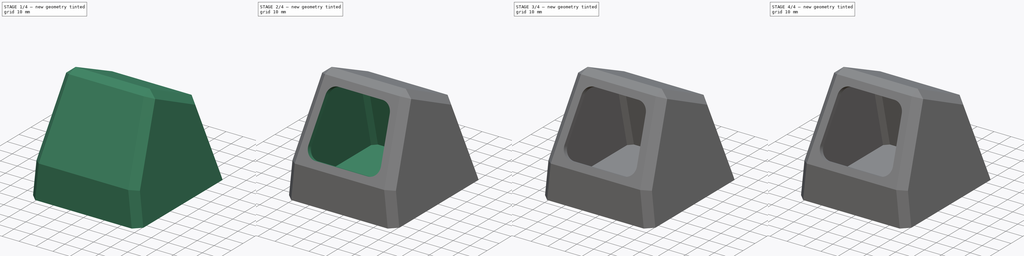
[diagram: build sequence overview — one tinted view per stage of 4, left to right]
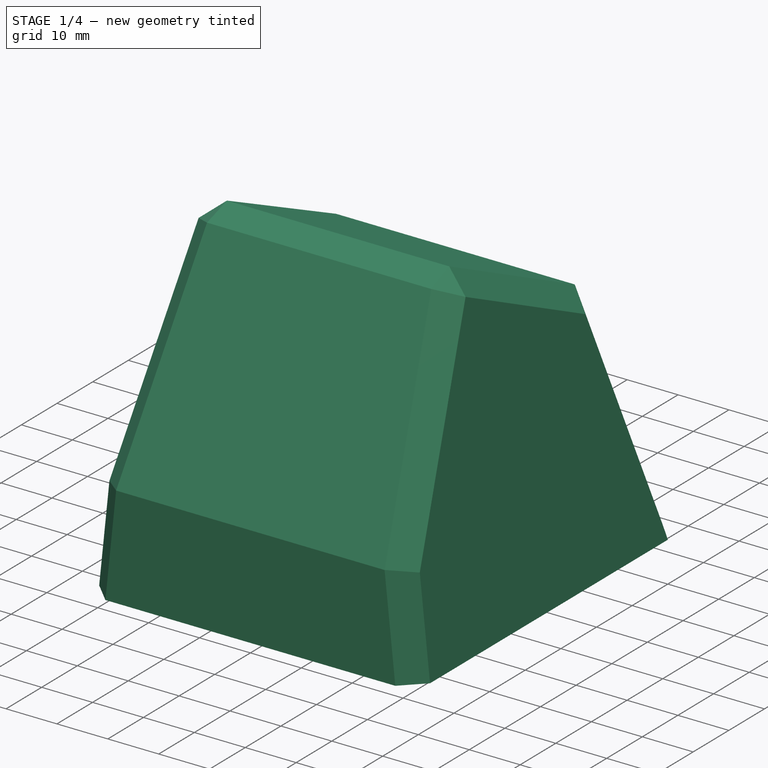
[diagram: stage 1 of 4 — iso view after this stage's code; geometry added in this stage tinted green]
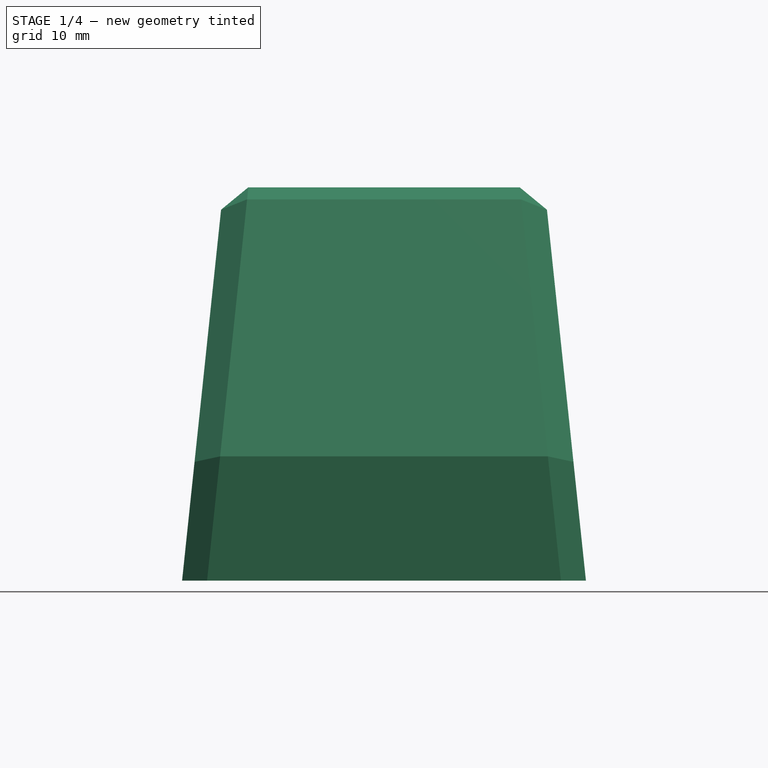
[diagram: stage 1 of 4 — front view after this stage's code; geometry added in this stage tinted green]
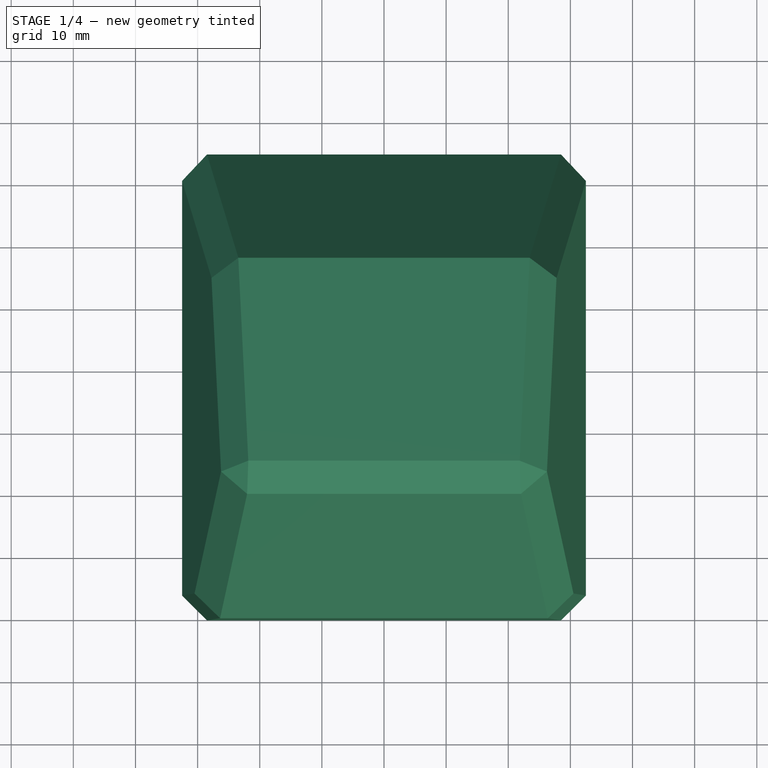
[diagram: stage 1 of 4 — top view after this stage's code; geometry added in this stage tinted green]
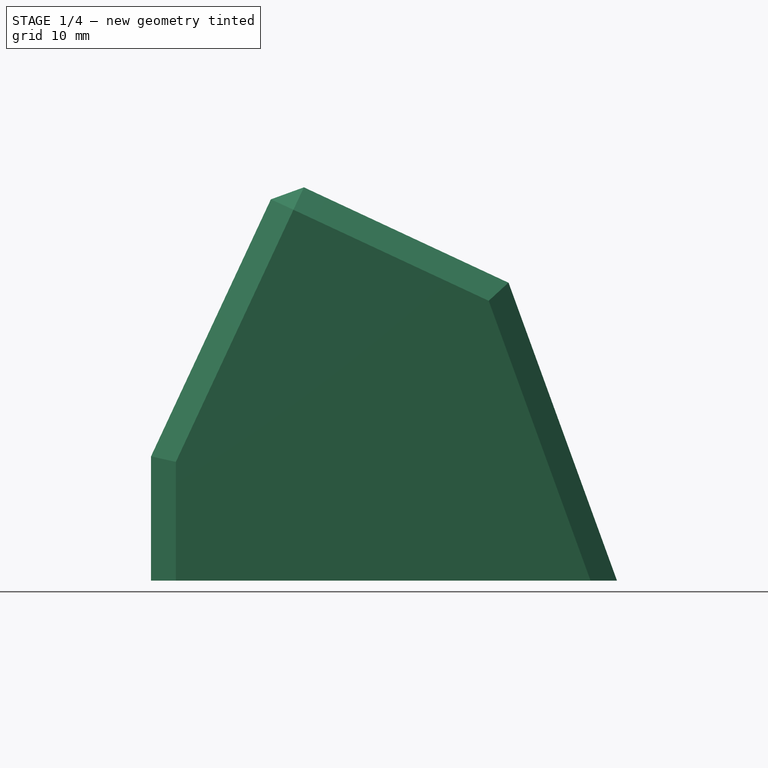
[diagram: stage 1 of 4 — right view after this stage's code; geometry added in this stage tinted green]
FCSTD DOCUMENT  (FreeCAD 0.20R28730 (Git))
Label: Tip Cleaner
License: All rights reserved
LicenseURL: http://en.wikipedia.org/wiki/All_rights_reserved
objects: Sketcher::SketchObject×8, PartDesign::Pocket×5, PartDesign::Body×3, PartDesign::Pad×2, PartDesign::FeatureBase×2, PartDesign::Draft×1, PartDesign::Chamfer×1, PartDesign::Thickness×1, PartDesign::Plane×1, PartDesign::Hole×1, PartDesign::CoordinateSystem×1
note: 37 computed .brp shape members not serialized (recipe doc carries the construction recipe); baked Part::Feature solids carry a one-line shape summary decoded from their .brp

FEATURE [Sketcher::SketchObject] Sketch
  FullyConstrained = true
  MapMode = 5
  Placement = pos=(0,0,0) rot=(0.57735,0.57735,0.57735;2.0944rad)
  Support = -> [YZ_Plane]
  sketch-geometry (5):
    g0: LineSegment StartX=0 StartY=0 StartZ=0 EndX=0 EndY=20 EndZ=0
    g1: LineSegment StartX=0 StartY=20 StartZ=0 EndX=20.9838 EndY=65 EndZ=0
    g2: LineSegment StartX=20.9838 StartY=65 StartZ=0 EndX=57.5476 EndY=47.95 EndZ=0
    g3: LineSegment StartX=57.5476 StartY=47.95 StartZ=0 EndX=75 EndY=0 EndZ=0
    g4: LineSegment StartX=75 StartY=0 StartZ=0 EndX=0 EndY=0 EndZ=0
  constraints (14):
    c: Coincident(g-1,g0)
    c: PointOnObject(g0,g-2)
    c: Coincident(g0,g1)
    c: Coincident(g1,g2)
    c: Coincident(g2,g3)
    c: PointOnObject(g3,g-1)
    c: Coincident(g3,g4)
    c: Coincident(g4,g0)
    c: DistanceY(g0,g0) = 20
    c: DistanceY(g0,g1) = 65
    c: DistanceX(g4,g4) = 75
    c: Perpendicular(g1,g2)
    c: Angle(g-1,g1) = 1.13446
    c: Angle(g3,g4) = 1.22173
FEATURE [PartDesign::Pad] Pad
  Direction = (1,-2e-16,3e-16)
  Length = 65
  Length2 = 10
  Midplane = true
  Placement = pos=(0,0,0) rot=(0.57735,0.57735,0.57735;2.0944rad)
  Profile = -> Sketch
  ReferenceAxis = -> Sketch [N_Axis]
  Refine = true
  Type = 0
FEATURE [PartDesign::Draft] Draft
  Angle = 6
  Base = -> Pad [Face7,Face6]
  BaseFeature = -> Pad
  NeutralPlane = -> Pad [Face5]
  Placement = pos=(0,0,0) rot=(0.57735,0.57735,0.57735;2.0944rad)
  Refine = true
  Reversed = true
  SupportTransform = false
FEATURE [PartDesign::Chamfer] Chamfer
  Angle = 45
  Base = -> Draft [Edge3,Edge6,Edge9,Edge12,Edge4,Edge7,Edge10,Edge13,Edge5]
  BaseFeature = -> Draft
  ChamferType = 0
  FlipDirection = false
  Placement = pos=(0,0,0) rot=(0.57735,0.57735,0.57735;2.0944rad)
  Refine = true
  Size = 4
  Size2 = 1
  SupportTransform = false
  UseAllEdges = false
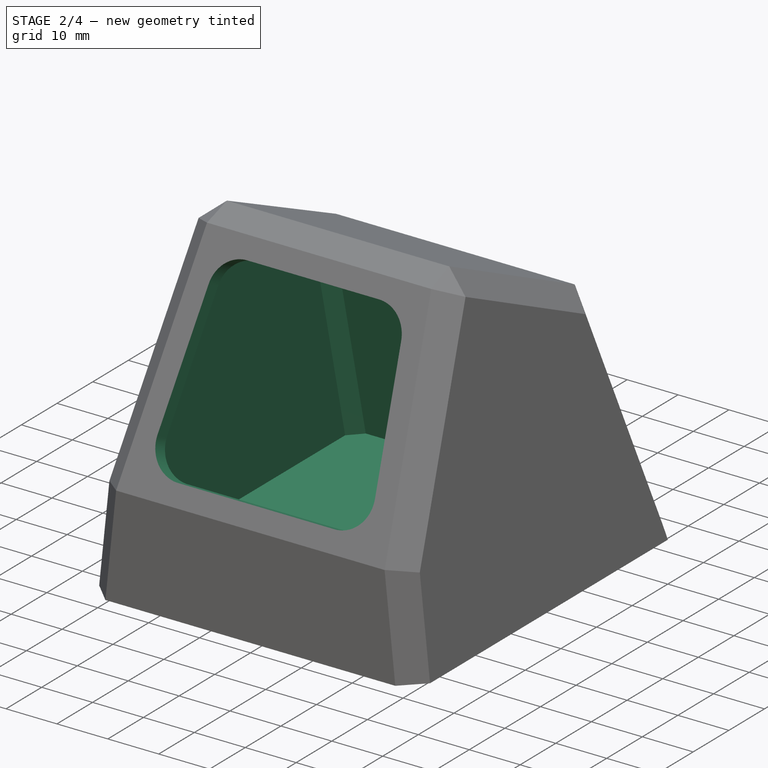
[diagram: stage 2 of 4 — iso view after this stage's code; geometry added in this stage tinted green]
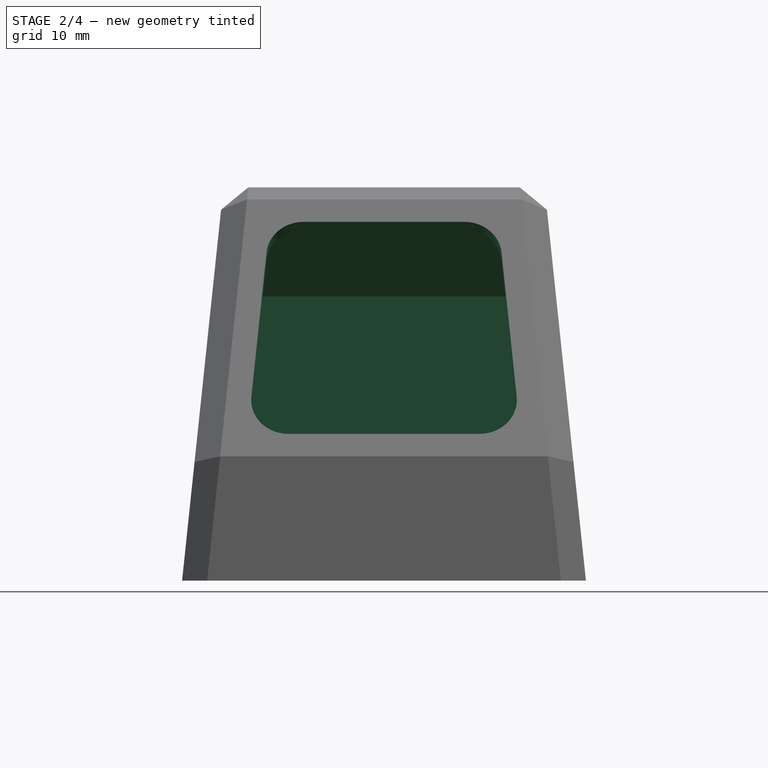
[diagram: stage 2 of 4 — front view after this stage's code; geometry added in this stage tinted green]
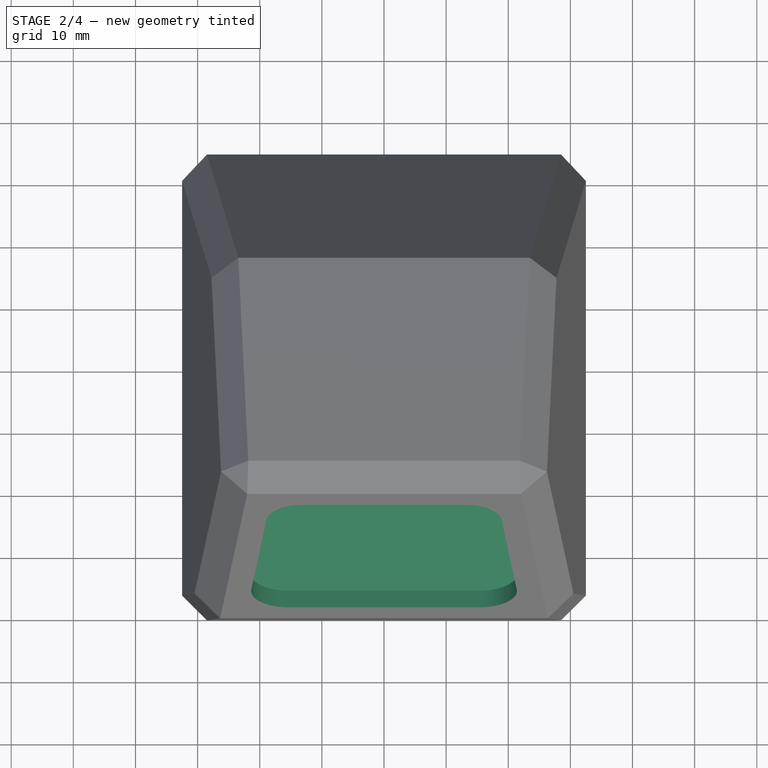
[diagram: stage 2 of 4 — top view after this stage's code; geometry added in this stage tinted green]
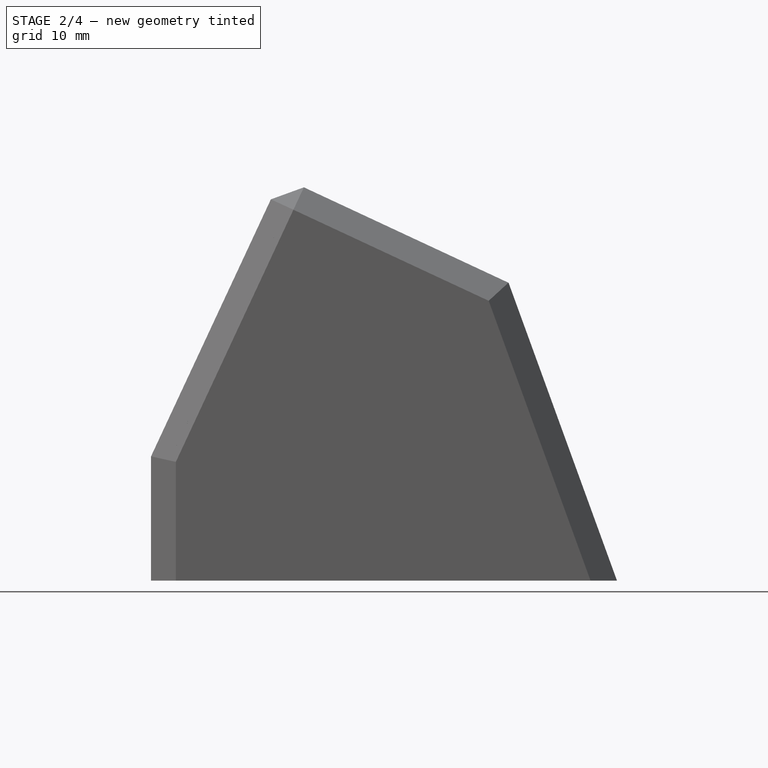
[diagram: stage 2 of 4 — right view after this stage's code; geometry added in this stage tinted green]
FEATURE [PartDesign::Thickness] Thickness
  Base = -> Chamfer [Face2]
  BaseFeature = -> Chamfer
  Intersection = true
  Join = 0
  Mode = 0
  Refine = true
  Reversed = true
  SupportTransform = false
  Value = 3
FEATURE [PartDesign::Plane] DatumPlane
  Length = 82.8318
  MapMode = 5
  Placement = pos=(-4.4e-15,-7.66044,3.57212) rot=(1,0,0;1.13446rad)
  ResizeMode = 0
  Support = -> [Thickness]
  Width = 140.129
FEATURE [Sketcher::SketchObject] Sketch001
  ExternalGeometry = -> [Thickness]
  FullyConstrained = true
  MapMode = 5
  Placement = pos=(-4.4e-15,-7.66044,3.57212) rot=(1,0,0;1.13446rad)
  Support = -> [DatumPlane]
  sketch-geometry (13):
    g0: ArcOfCircle CenterX=-12.9384 CenterY=53.7782 CenterZ=0 NormalX=0 NormalY=0 NormalZ=1 AngleXU=0 Radius=6 StartAngle=1.5708 EndAngle=3.04662
    g1: LineSegment StartX=-12.9384 StartY=59.7782 StartZ=0 EndX=12.9384 EndY=59.7782 EndZ=0
    g2: ArcOfCircle CenterX=12.9384 CenterY=53.7782 CenterZ=0 NormalX=0 NormalY=0 NormalZ=1 AngleXU=0 Radius=6 StartAngle=0.0949702 EndAngle=1.5708
    g3: LineSegment StartX=18.9114 StartY=54.3471 StartZ=0 EndX=21.3541 EndY=28.7044 EndZ=0
    g4: ArcOfCircle CenterX=15.3811 CenterY=28.1354 CenterZ=0 NormalX=0 NormalY=0 NormalZ=1 AngleXU=0 Radius=6 StartAngle=4.71239 EndAngle=6.37816
    g5: LineSegment StartX=15.3811 StartY=22.1354 StartZ=0 EndX=-15.3811 EndY=22.1354 EndZ=0
    g6: ArcOfCircle CenterX=-15.3811 CenterY=28.1354 CenterZ=0 NormalX=0 NormalY=0 NormalZ=1 AngleXU=0 Radius=6 StartAngle=3.04662 EndAngle=4.71239
    g7: LineSegment StartX=-21.3541 StartY=28.7044 StartZ=0 EndX=-18.9114 EndY=54.3471 EndZ=0
    g8: GeomPoint X=-18.3941 Y=59.7782 Z=0
    g9: GeomPoint X=21.9798 Y=22.1354 Z=0
    g10: LineSegment StartX=21.3541 StartY=28.7044 StartZ=0 EndX=25.336 EndY=29.0837 EndZ=0
    g11: LineSegment StartX=12.9384 StartY=59.7782 StartZ=0 EndX=12.9384 EndY=63.7782 EndZ=0
    g12: LineSegment StartX=15.3811 StartY=22.1354 StartZ=0 EndX=15.3811 EndY=18.1354 EndZ=0
  constraints (31):
    c: Tangent(g0,g1) = 1.5708
    c: Tangent(g1,g2) = 1.5708
    c: Tangent(g2,g3) = 1.5708
    c: Tangent(g3,g4) = 1.5708
    c: Tangent(g4,g5) = 1.5708
    c: Tangent(g5,g6) = 1.5708
    c: Tangent(g6,g7) = 1.5708
    c: Tangent(g7,g0) = 1.5708
    c: Equal(g0,g2)
    c: Equal(g2,g4)
    c: Equal(g4,g6)
    c: PointOnObject(g8,g1)
    c: PointOnObject(g8,g7)
    c: PointOnObject(g9,g3)
    c: PointOnObject(g9,g5)
    c: Symmetric(g0,g2,g-2)
    c: Symmetric(g6,g4,g-2)
    c: Coincident(g10,g3)
    c: PointOnObject(g10,g-3)
    c: Coincident(g11,g1)
    c: Vertical(g11)
    c: Horizontal(g11,g-3)
    c: Perpendicular(g-3,g10)
    c: Equal(g10,g11)
    c: DistanceY(g11,g11) = 4
    c: Radius(g2) = 6
    c: Parallel(g3,g-3)
    c: Coincident(g12,g4)
    c: Vertical(g12)
    c: Horizontal(g12,g-3)
    c: Equal(g12,g11)
FEATURE [PartDesign::Pocket] Pocket
  BaseFeature = -> Thickness
  Direction = (6e-16,0.906308,-0.422618)
  Length = 5
  Length2 = 5
  Profile = -> Sketch001
  ReferenceAxis = -> Sketch001 [N_Axis]
  Refine = true
  Type = 0
FEATURE [Sketcher::SketchObject] Sketch002
  ExternalGeometry = -> [Pocket]
  FullyConstrained = true
  MapMode = 5
  Support = -> [XY_Plane]
  sketch-geometry (8):
    g0: LineSegment StartX=-27.1555 StartY=71.8075 StartZ=0 EndX=-29.4835 EndY=69.3436 EndZ=0
    g1: LineSegment StartX=-29.4835 StartY=69.3436 StartZ=0 EndX=-29.4835 EndY=5.24264 EndZ=0
    g2: LineSegment StartX=-29.4835 StartY=5.24264 StartZ=0 EndX=-27.2285 EndY=3 EndZ=0
    g3: LineSegment StartX=27.1555 StartY=71.8075 StartZ=0 EndX=29.4835 EndY=69.3436 EndZ=0
    g4: LineSegment StartX=29.4835 StartY=69.3436 StartZ=0 EndX=29.4835 EndY=5.24264 EndZ=0
    g5: LineSegment StartX=29.4835 StartY=5.24264 StartZ=0 EndX=27.2285 EndY=3 EndZ=0
    g6: LineSegment StartX=-27.1555 StartY=71.8075 StartZ=0 EndX=27.1555 EndY=71.8075 EndZ=0
    g7: LineSegment StartX=-27.2285 StartY=3 StartZ=0 EndX=27.2285 EndY=3 EndZ=0
  constraints (16):
    c: Coincident(g-3,g0)
    c: Coincident(g0,g-3)
    c: Coincident(g0,g1)
    c: Coincident(g1,g-4)
    c: Coincident(g1,g2)
    c: Coincident(g2,g-4)
    c: Coincident(g3,g4)
    c: Coincident(g4,g5)
    c: Symmetric(g0,g3,g-2)
    c: Symmetric(g2,g5,g-2)
    c: Symmetric(g0,g3,g-2)
    c: Symmetric(g1,g4,g-2)
    c: Coincident(g6,g0)
    c: Coincident(g6,g3)
    c: Coincident(g7,g2)
    c: Coincident(g7,g5)
FEATURE [PartDesign::Pad] Pad001
  BaseFeature = -> Pocket
  Direction = (0,0,1)
  Length = 3
  Length2 = 10
  Profile = -> Sketch002
  ReferenceAxis = -> Sketch002 [N_Axis]
  Refine = true
  Type = 0
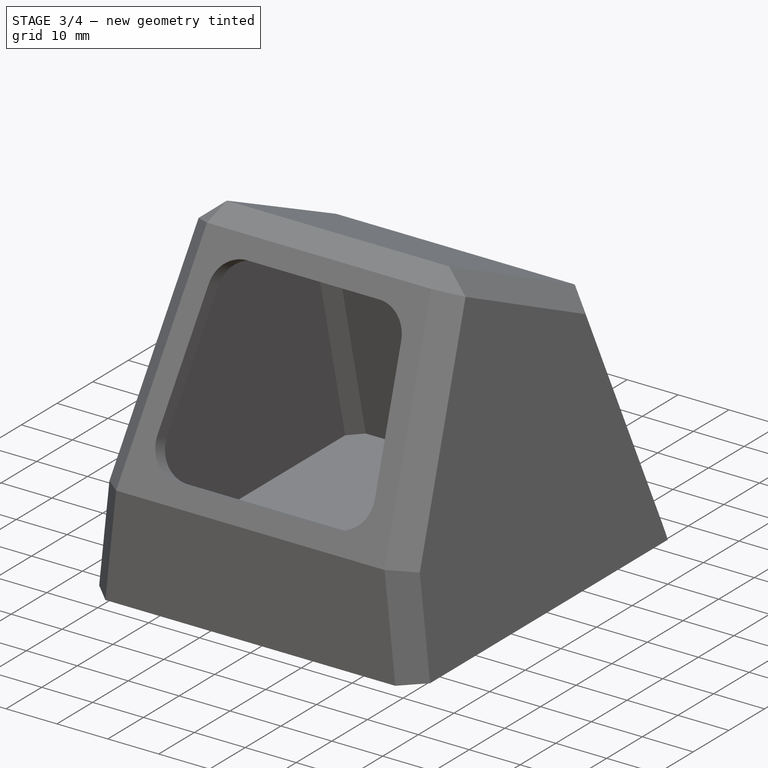
[diagram: stage 3 of 4 — iso view after this stage's code; geometry added in this stage tinted green]
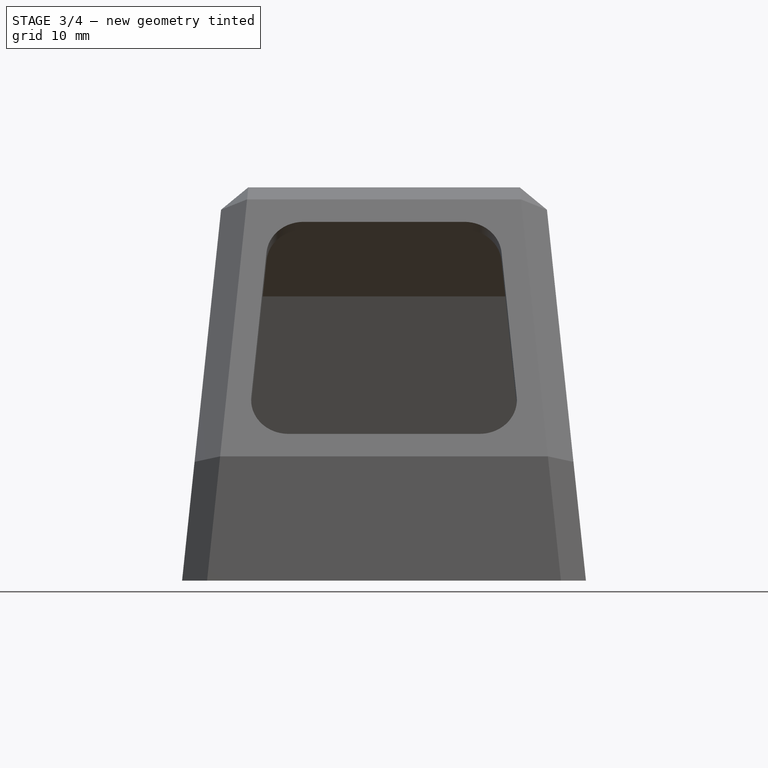
[diagram: stage 3 of 4 — front view after this stage's code; geometry added in this stage tinted green]
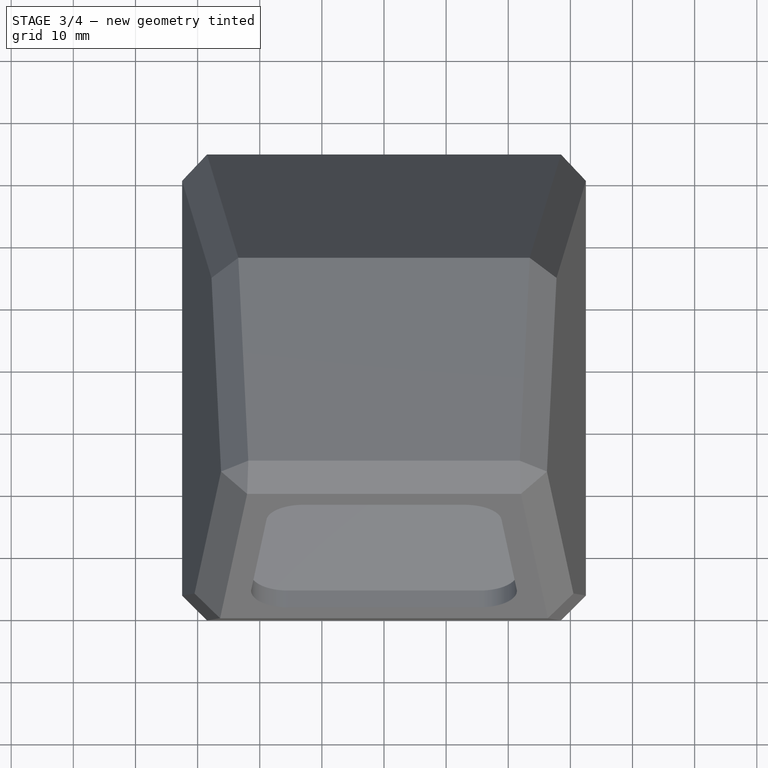
[diagram: stage 3 of 4 — top view after this stage's code; geometry added in this stage tinted green]
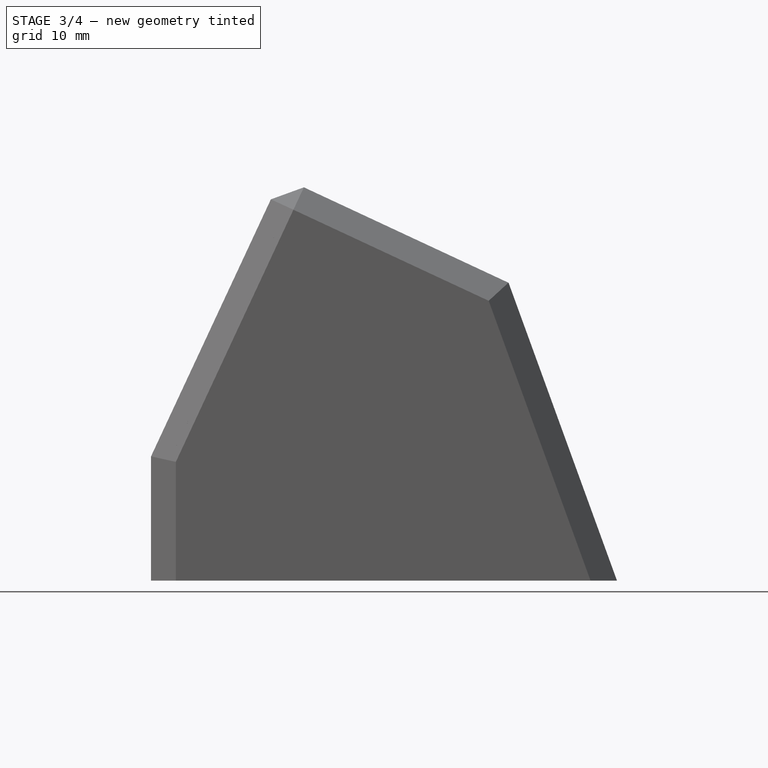
[diagram: stage 3 of 4 — right view after this stage's code; geometry added in this stage tinted green]
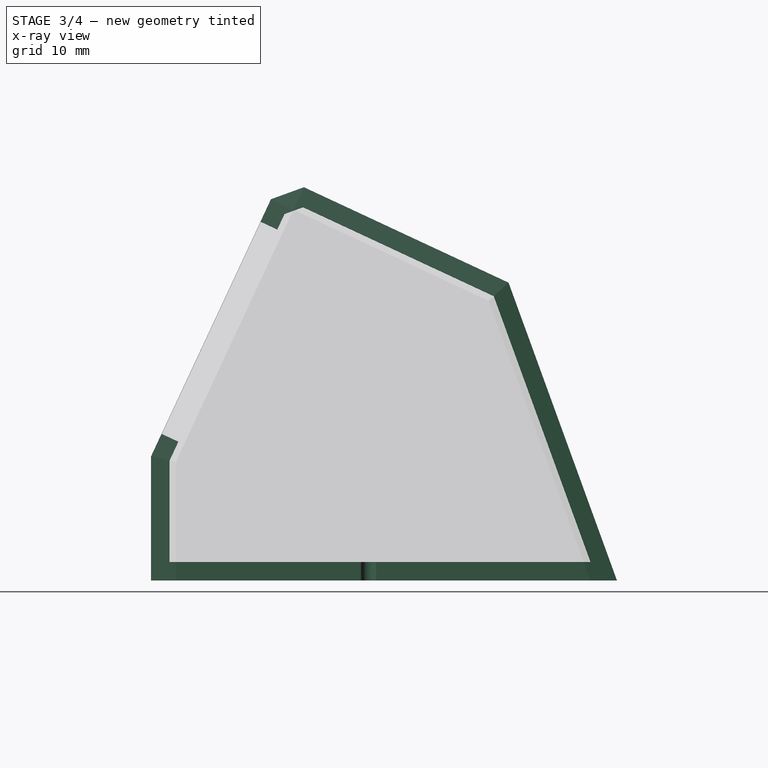
[diagram: stage 3 of 4 — x-ray composite at the right view; earlier geometry ghosted, this stage's added geometry solid]
FEATURE [Sketcher::SketchObject] Sketch003
  FullyConstrained = true
  MapMode = 5
  Support = -> [XY_Plane]
  sketch-geometry (2):
    g0: Circle CenterX=-15 CenterY=35 CenterZ=0 NormalX=0 NormalY=0 NormalZ=1 AngleXU=0 Radius=1.5
    g1: Circle CenterX=15 CenterY=35 CenterZ=0 NormalX=0 NormalY=0 NormalZ=1 AngleXU=0 Radius=1.5
  constraints (5):
    c: Symmetric(g0,g1,g-2)
    c: DistanceY(g-1,g0) = 35
    c: DistanceX(g0,g1) = 30
    c: Equal(g1,g0)
    c: Diameter(g1) = 3
FEATURE [PartDesign::Hole] Hole
  BaseFeature = -> Pad001
  CustomThreadClearance = 0
  Depth = 5
  DepthType = 0
  Diameter = 2.5
  DrillForDepth = false
  DrillPoint = 1
  DrillPointAngle = 118
  HoleCutCountersinkAngle = 90
  HoleCutCustomValues = false
  HoleCutDepth = 0
  HoleCutDiameter = 6.1
  HoleCutType = 0
  ModelThread = false
  Profile = -> Sketch003
  Refine = true
  Reversed = true
  Tapered = false
  TaperedAngle = 90
  ThreadClass = 0
  ThreadDepth = 5
  ThreadDepthType = 0
  ThreadDirection = 0
  ThreadFit = 0
  ThreadSize = 9
  ThreadType = 1
  Threaded = true
  UseCustomThreadClearance = false
FEATURE [Sketcher::SketchObject] Sketch004
  FullyConstrained = false
  MapMode = 5
  Placement = pos=(0,0,0) rot=(0.57735,0.57735,0.57735;2.0944rad)
  Support = -> [YZ_Plane001]
  sketch-geometry (4):
    g0: LineSegment StartX=0 StartY=0 StartZ=0 EndX=100.304 EndY=0 EndZ=0
    g1: LineSegment StartX=100.304 StartY=0 StartZ=0 EndX=100.304 EndY=74.0471 EndZ=0
    g2: LineSegment StartX=100.304 StartY=74.0471 StartZ=0 EndX=0 EndY=74.0471 EndZ=0
    g3: LineSegment StartX=0 StartY=74.0471 StartZ=0 EndX=0 EndY=0 EndZ=0
  constraints (9):
    c: Coincident(g0,g1)
    c: Coincident(g1,g2)
    c: Coincident(g2,g3)
    c: Coincident(g3,g0)
    c: Horizontal(g0)
    c: Horizontal(g2)
    c: Vertical(g1)
    c: Vertical(g3)
    c: Coincident(g0,g-1)
FEATURE [Sketcher::SketchObject] Sketch005
  AttachmentOffset = pos=(0,0,-3.9) rot=(0,0,1;0rad)
  FullyConstrained = true
  MapMode = 5
  Placement = pos=(-3.9,9e-16,-9e-16) rot=(0.57735,0.57735,0.57735;2.0944rad)
  Support = -> [YZ_Plane002]
  sketch-geometry (4):
    g0: LineSegment StartX=0 StartY=0 StartZ=0 EndX=100 EndY=0 EndZ=0
    g1: LineSegment StartX=100 StartY=0 StartZ=0 EndX=100 EndY=100 EndZ=0
    g2: LineSegment StartX=100 StartY=100 StartZ=0 EndX=0 EndY=100 EndZ=0
    g3: LineSegment StartX=0 StartY=100 StartZ=0 EndX=0 EndY=0 EndZ=0
  constraints (11):
    c: Coincident(g0,g1)
    c: Coincident(g1,g2)
    c: Coincident(g2,g3)
    c: Coincident(g3,g0)
    c: Horizontal(g0)
    c: Horizontal(g2)
    c: Vertical(g1)
    c: Vertical(g3)
    c: Coincident(g0,g-1)
    c: Equal(g1,g2)
    c: DistanceX(g2,g2) = 100
FEATURE [PartDesign::CoordinateSystem] LCS_Tip_Cleaner_Hole_1
  AttacherType = Attacher::AttachEngine3D
  MapMode = 11
  Placement = pos=(-15,35,0) rot=(0.707107,0.707107,0;3.14159rad)
  Support = -> [Hole]
FEATURE [PartDesign::Body] Body  label="Tip_Cleaner"
  Group = -> [Sketch,Pad,Draft,Chamfer,Thickness,DatumPlane,Sketch001,Pocket,Sketch002,Pad001,Sketch003,Hole,LCS_Tip_Cleaner_Hole_1]
  Origin = -> Origin
  Tip = -> Hole
FEATURE [PartDesign::FeatureBase] Clone
  BaseFeature = -> Body
FEATURE [PartDesign::Pocket] Pocket001
  BaseFeature = -> Clone
  Direction = (-1,2e-16,-3e-16)
  Length = 5
  Length2 = 5
  Profile = -> Sketch004
  ReferenceAxis = -> Sketch004 [N_Axis]
  Refine = true
  Reversed = true
  Type = 1
FEATURE [PartDesign::FeatureBase] Clone001
  BaseFeature = -> Body
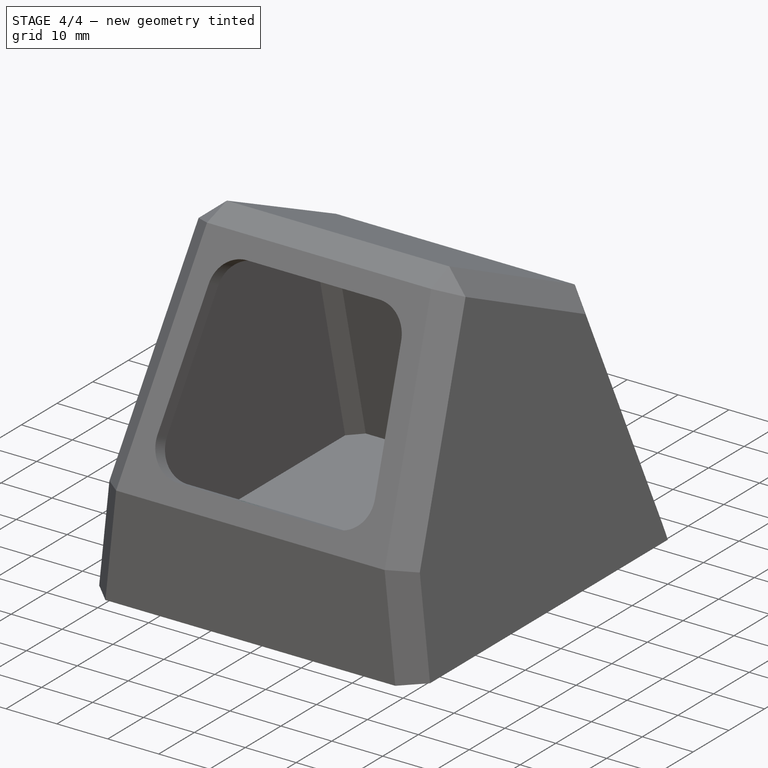
[diagram: stage 4 of 4 — iso view after this stage's code; geometry added in this stage tinted green]
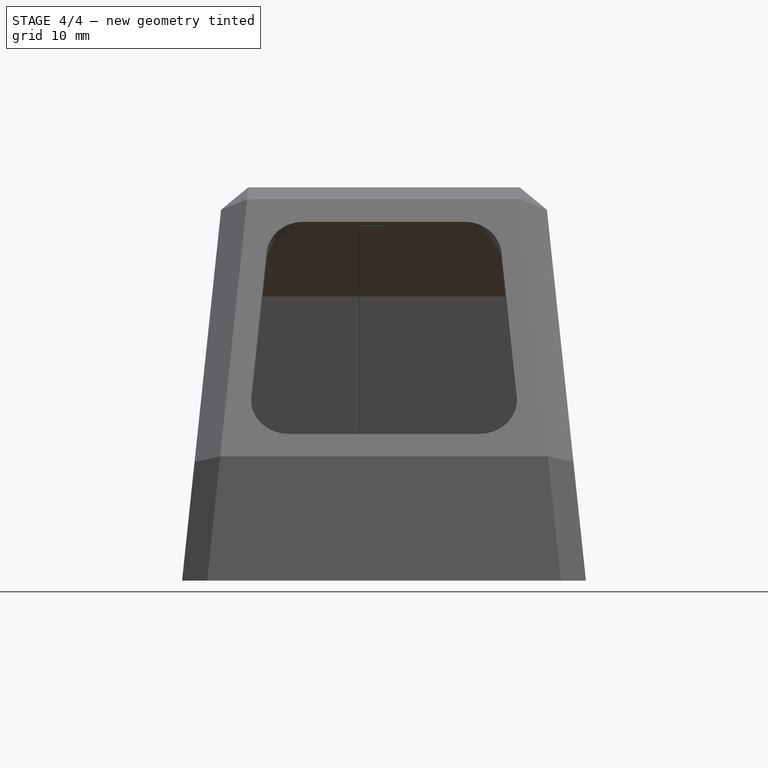
[diagram: stage 4 of 4 — front view after this stage's code; geometry added in this stage tinted green]
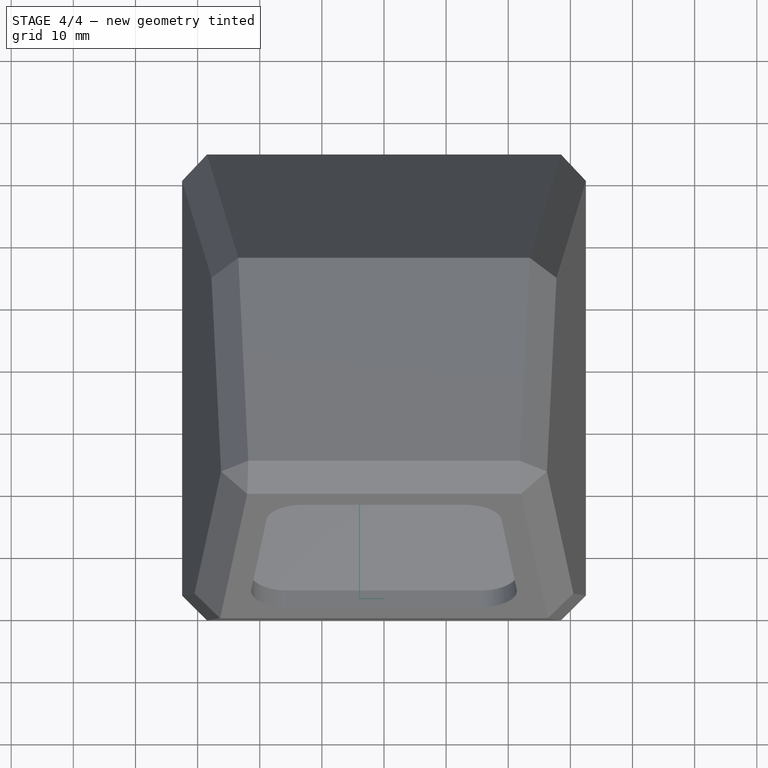
[diagram: stage 4 of 4 — top view after this stage's code; geometry added in this stage tinted green]
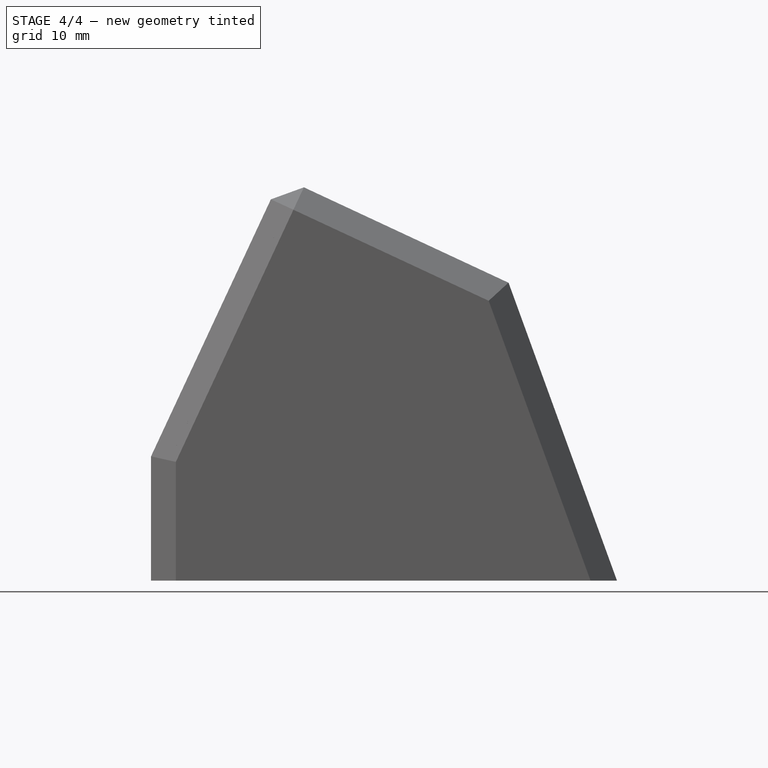
[diagram: stage 4 of 4 — right view after this stage's code; geometry added in this stage tinted green]
FEATURE [PartDesign::Pocket] Pocket002
  BaseFeature = -> Clone001
  Direction = (-1,2e-16,-3e-16)
  Length = 5
  Length2 = 5
  Profile = -> Sketch005
  ReferenceAxis = -> Sketch005 [N_Axis]
  Refine = true
  Type = 1
FEATURE [Sketcher::SketchObject] Sketch006
  ExternalGeometry = -> [Pocket001]
  FullyConstrained = true
  MapMode = 5
  Placement = pos=(0,0,0) rot=(0.57735,0.57735,0.57735;2.0944rad)
  Support = -> [YZ_Plane001]
  sketch-geometry (12):
    g0: LineSegment StartX=20.3903 StartY=60.1777 StartZ=0 EndX=24.5383 EndY=61.6875 EndZ=0
    g1: LineSegment StartX=24.5383 StartY=61.6875 StartZ=0 EndX=56.3506 EndY=46.8532 EndZ=0
    g2: LineSegment StartX=56.3506 StartY=46.8532 StartZ=0 EndX=72.8578 EndY=1.5 EndZ=0
    g3: LineSegment StartX=72.8578 StartY=1.5 StartZ=0 EndX=1.5 EndY=1.5 EndZ=0
    g4: LineSegment StartX=1.5 StartY=1.5 StartZ=0 EndX=1.5 EndY=19.6675 EndZ=0
    g5: LineSegment StartX=1.5 StartY=19.6675 StartZ=0 EndX=20.3903 EndY=60.1777 EndZ=0
    g6: LineSegment StartX=3 StartY=3 StartZ=0 EndX=3 EndY=1.5 EndZ=0
    g7: LineSegment StartX=3 StartY=3 StartZ=0 EndX=1.5 EndY=3 EndZ=0
    g8: LineSegment StartX=24.4674 StartY=60.0654 StartZ=0 EndX=23.9544 EndY=61.475 EndZ=0
    g9: LineSegment StartX=21.4871 StartY=58.9807 StartZ=0 EndX=20.1277 EndY=59.6146 EndZ=0
    g10: LineSegment StartX=24.4674 StartY=60.0654 StartZ=0 EndX=25.1014 EndY=61.4249 EndZ=0
    g11: LineSegment StartX=55.1535 StartY=45.7563 StartZ=0 EndX=56.5631 EndY=46.2693 EndZ=0
  constraints (36):
    c: Coincident(g0,g1)
    c: Coincident(g1,g2)
    c: Coincident(g2,g3)
    c: Horizontal(g3)
    c: Coincident(g3,g4)
    c: Vertical(g4)
    c: Coincident(g4,g5)
    c: Coincident(g5,g0)
    c: Parallel(g-4,g0)
    c: Parallel(g-5,g1)
    c: Parallel(g-6,g2)
    c: Parallel(g-3,g5)
    c: Coincident(g6,g-9)
    c: PointOnObject(g6,g3)
    c: Coincident(g7,g6)
    c: PointOnObject(g7,g4)
    c: Coincident(g8,g-5)
    c: PointOnObject(g8,g0)
    c: Coincident(g9,g-4)
    c: PointOnObject(g9,g5)
    c: Coincident(g10,g8)
    c: PointOnObject(g10,g1)
    c: Perpendicular(g-5,g10)
    c: Perpendicular(g-4,g8)
    c: Perpendicular(g-3,g9)
    c: Distance(g10) = 1.5
    c: Equal(g10,g8)
    c: Equal(g8,g9)
    c: Vertical(g6)
    c: Horizontal(g7)
    c: Equal(g6,g7)
    c: Equal(g7,g10)
    c: Coincident(g11,g-6)
    c: PointOnObject(g11,g2)
    c: Perpendicular(g2,g11)
    c: Equal(g11,g10)
FEATURE [Sketcher::SketchObject] Sketch007
  ExternalGeometry = -> [Pocket001]
  FullyConstrained = true
  MapMode = 5
  Placement = pos=(0,0,0) rot=(0.57735,0.57735,0.57735;2.0944rad)
  Support = -> [YZ_Plane002]
  sketch-geometry (16):
    g0: LineSegment StartX=20.4634 StartY=60.0979 StartZ=0 EndX=24.5335 EndY=61.5793 EndZ=0
    g1: LineSegment StartX=24.5335 StartY=61.5793 StartZ=0 EndX=56.2708 EndY=46.78 EndZ=0
    g2: LineSegment StartX=56.2708 StartY=46.78 StartZ=0 EndX=72.715 EndY=1.6 EndZ=0
    g3: LineSegment StartX=72.715 StartY=1.6 StartZ=0 EndX=1.6 EndY=1.6 EndZ=0
    g4: LineSegment StartX=1.6 StartY=1.6 StartZ=0 EndX=1.6 EndY=19.6453 EndZ=0
    g5: LineSegment StartX=1.6 StartY=19.6453 StartZ=0 EndX=20.4634 EndY=60.0979 EndZ=0
    g6: LineSegment StartX=3 StartY=3 StartZ=0 EndX=3 EndY=1.6 EndZ=0
    g7: LineSegment StartX=3 StartY=3 StartZ=0 EndX=1.6 EndY=3 EndZ=0
    g8: LineSegment StartX=24.4674 StartY=60.0654 StartZ=0 EndX=23.9886 EndY=61.381 EndZ=0
    g9: LineSegment StartX=21.4871 StartY=58.9807 StartZ=0 EndX=20.2183 EndY=59.5724 EndZ=0
    g10: LineSegment StartX=24.4674 StartY=60.0654 StartZ=0 EndX=25.0591 EndY=61.3343 EndZ=0
    g11: LineSegment StartX=55.1535 StartY=45.7563 StartZ=0 EndX=56.4691 EndY=46.2351 EndZ=0
    g12: LineSegment StartX=0 StartY=0 StartZ=0 EndX=100 EndY=0 EndZ=0
    g13: LineSegment StartX=100 StartY=0 StartZ=0 EndX=100 EndY=100 EndZ=0
    g14: LineSegment StartX=100 StartY=100 StartZ=0 EndX=0 EndY=100 EndZ=0
    g15: LineSegment StartX=0 StartY=100 StartZ=0 EndX=0 EndY=0 EndZ=0
  constraints (47):
    c: Coincident(g0,g1)
    c: Coincident(g1,g2)
    c: Coincident(g2,g3)
    c: Horizontal(g3)
    c: Coincident(g3,g4)
    c: Vertical(g4)
    c: Coincident(g4,g5)
    c: Coincident(g5,g0)
    c: Parallel(g-4,g0)
    c: Parallel(g-5,g1)
    c: Parallel(g-6,g2)
    c: Parallel(g-3,g5)
    c: Coincident(g6,g-9)
    c: PointOnObject(g6,g3)
    c: Coincident(g7,g6)
    c: PointOnObject(g7,g4)
    c: Coincident(g8,g-5)
    c: PointOnObject(g8,g0)
    c: Coincident(g9,g-4)
    c: PointOnObject(g9,g5)
    c: Coincident(g10,g8)
    c: PointOnObject(g10,g1)
    c: Perpendicular(g-5,g10)
    c: Perpendicular(g-4,g8)
    c: Perpendicular(g-3,g9)
    c: Distance(g10) = 1.4
    c: Equal(g10,g8)
    c: Equal(g8,g9)
    c: Vertical(g6)
    c: Horizontal(g7)
    c: Equal(g6,g7)
    c: Equal(g7,g10)
    c: Coincident(g11,g-6)
    c: PointOnObject(g11,g2)
    c: Perpendicular(g2,g11)
    c: Coincident(g12,g13)
    c: Coincident(g13,g14)
    c: Coincident(g14,g15)
    c: Coincident(g15,g12)
    c: Horizontal(g12)
    c: Horizontal(g14)
    c: Vertical(g13)
    c: Vertical(g15)
    c: Coincident(g12,g-1)
    c: Equal(g13,g14)
    c: DistanceX(g14,g14) = 100
    c: Equal(g11,g10)
FEATURE [PartDesign::Pocket] Pocket003
  BaseFeature = -> Pocket001
  Direction = (-1,2e-16,-3e-16)
  Length = 4
  Length2 = 5
  Profile = -> Sketch006
  ReferenceAxis = -> Sketch006 [N_Axis]
  Refine = true
  Type = 0
FEATURE [PartDesign::Body] Body001  label="Left"
  BaseFeature = -> Body
  Group = -> [Clone,Sketch004,Pocket001,Sketch006,Pocket003]
  Origin = -> Origin001
  Tip = -> Pocket003
FEATURE [PartDesign::Pocket] Pocket004
  BaseFeature = -> Pocket002
  Direction = (-1,2e-16,-3e-16)
  Length = 5
  Length2 = 5
  Profile = -> Sketch007
  ReferenceAxis = -> Sketch007 [N_Axis]
  Refine = true
  Type = 1
FEATURE [PartDesign::Body] Body002  label="Right"
  BaseFeature = -> Body
  Group = -> [Clone001,Sketch005,Pocket002,Sketch007,Pocket004]
  Origin = -> Origin002
  Tip = -> Pocket004
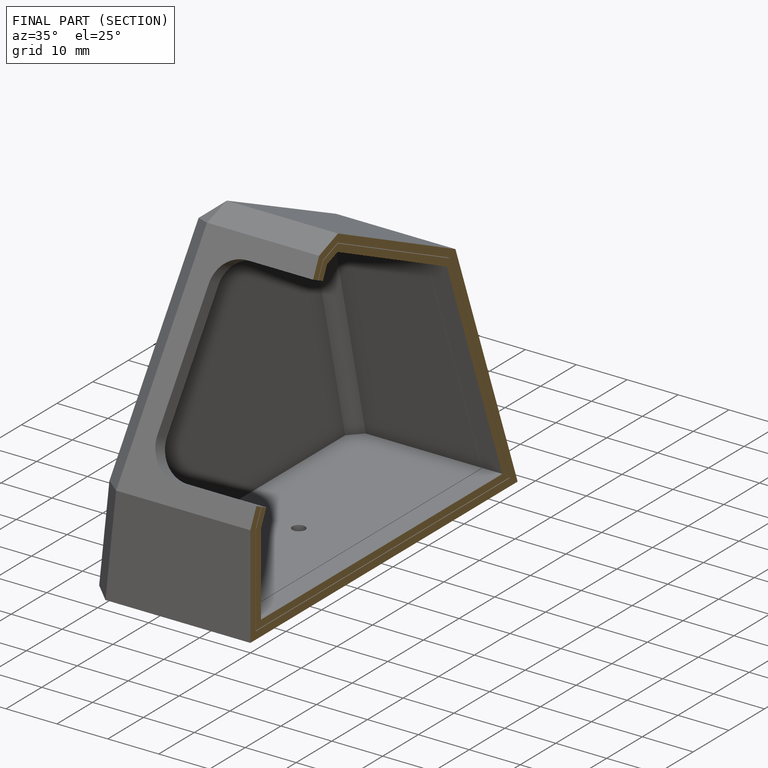
[diagram: finished part — half-section view (interior)]
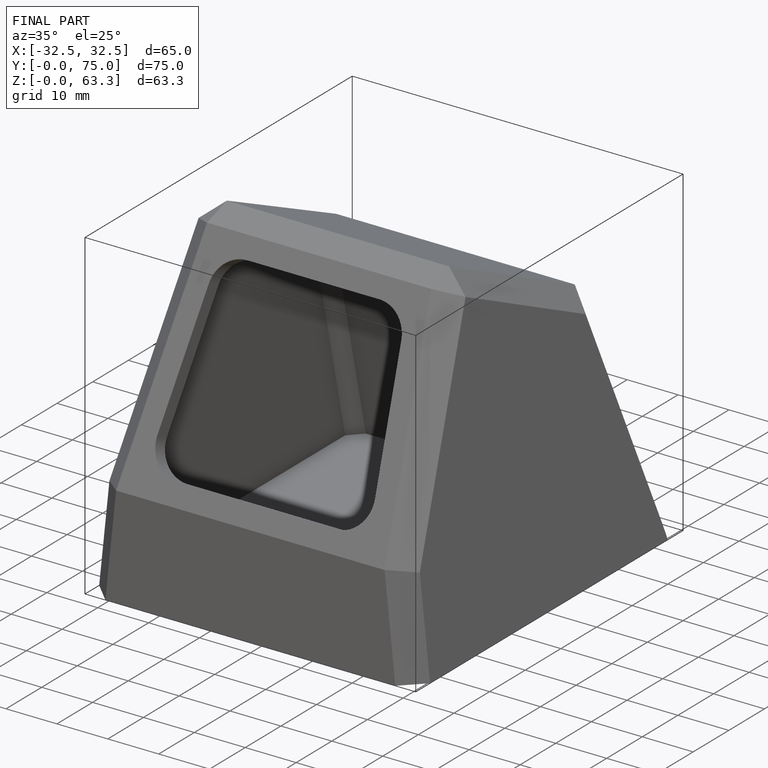
[diagram: finished part — iso view with bounding-box wireframe]
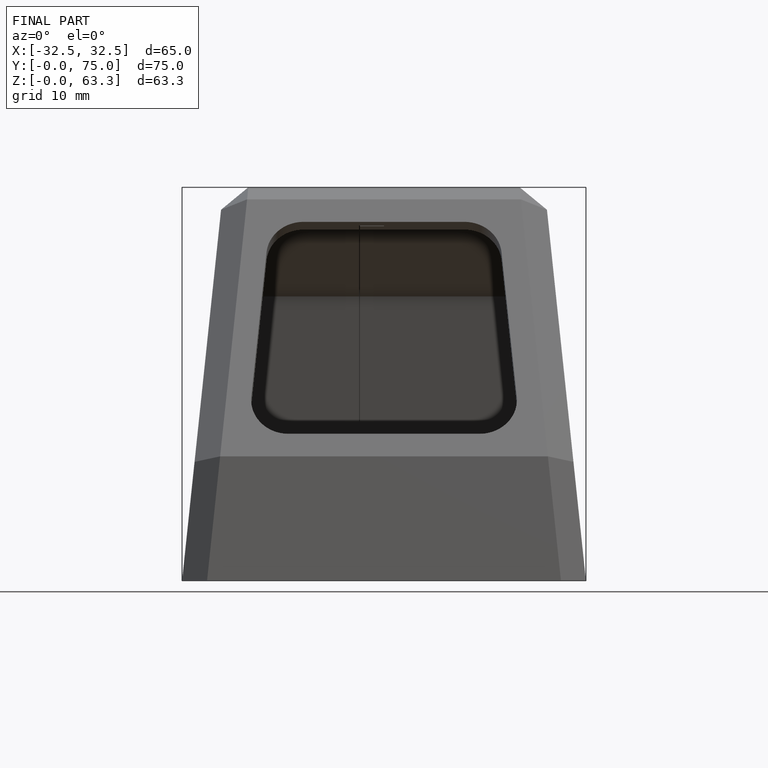
[diagram: finished part — front view with bounding-box wireframe]
